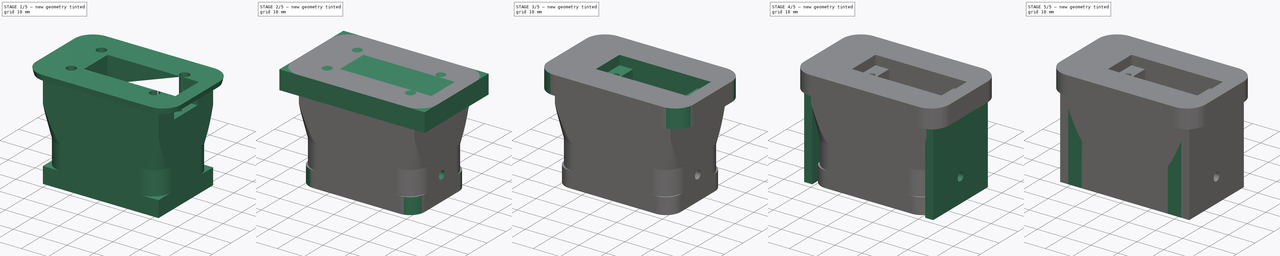
[diagram: build sequence overview — one tinted view per stage of 5, left to right]
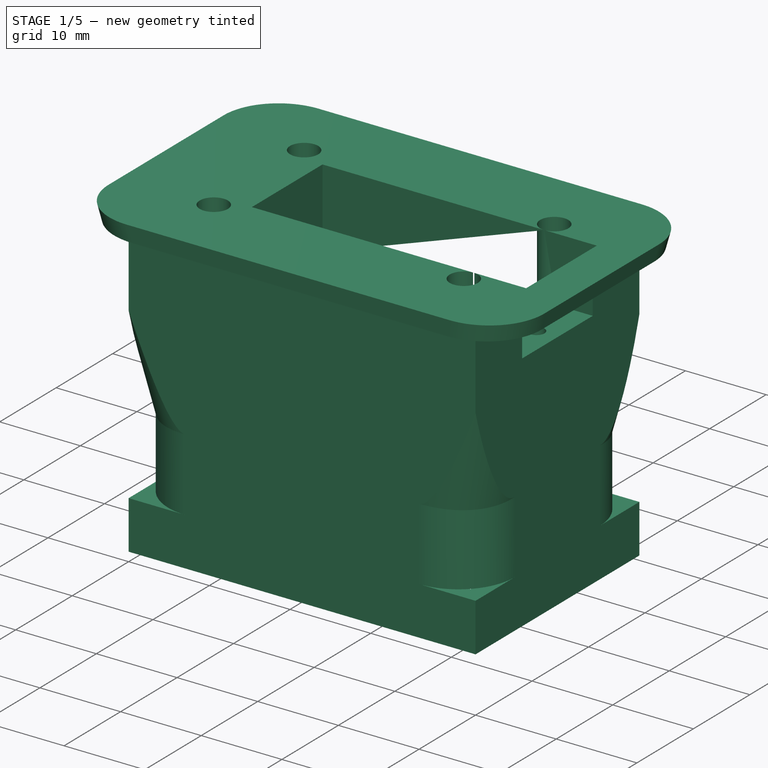
[diagram: stage 1 of 5 — iso view after this stage's code; geometry added in this stage tinted green]
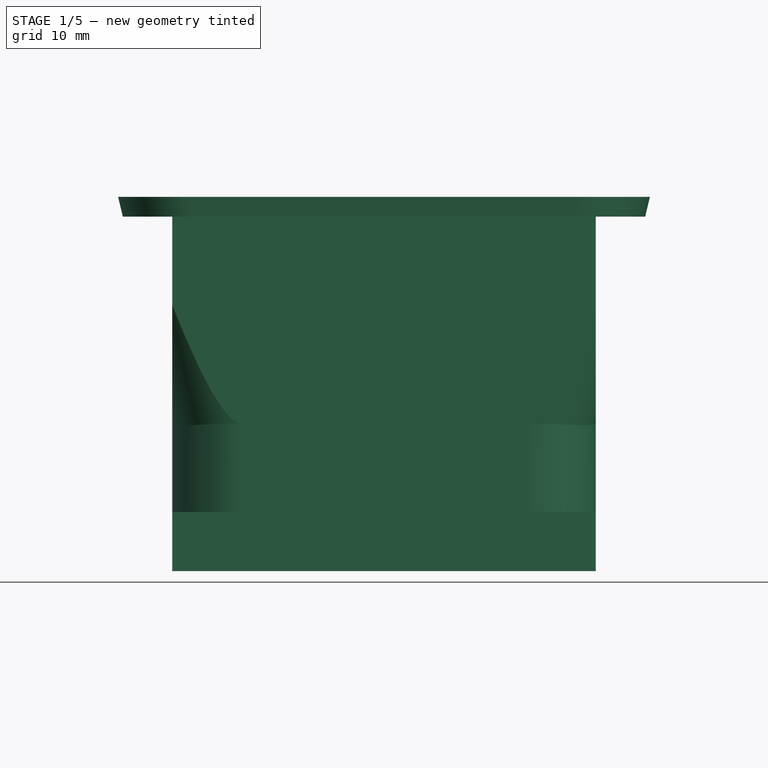
[diagram: stage 1 of 5 — front view after this stage's code; geometry added in this stage tinted green]
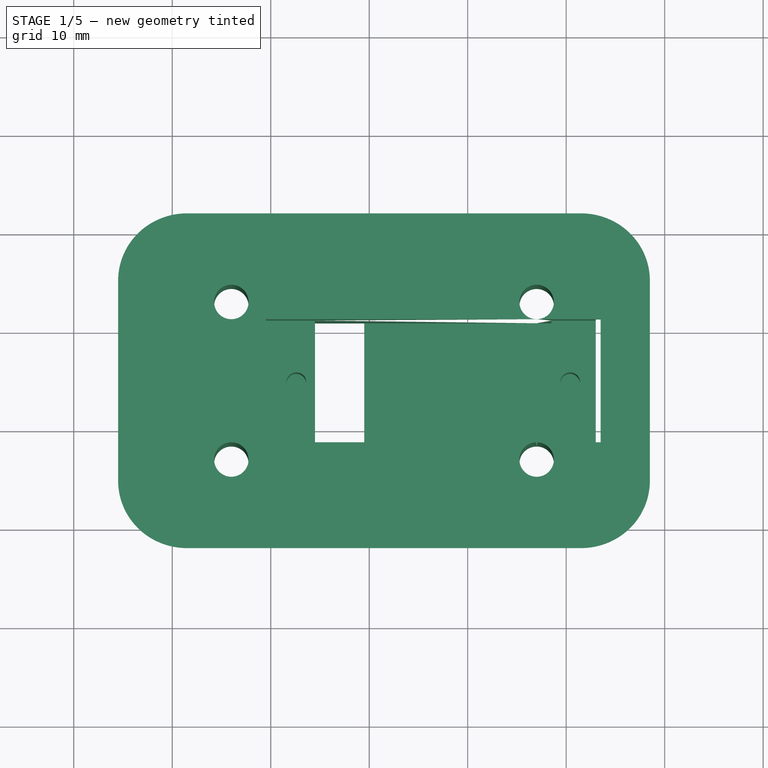
[diagram: stage 1 of 5 — top view after this stage's code; geometry added in this stage tinted green]
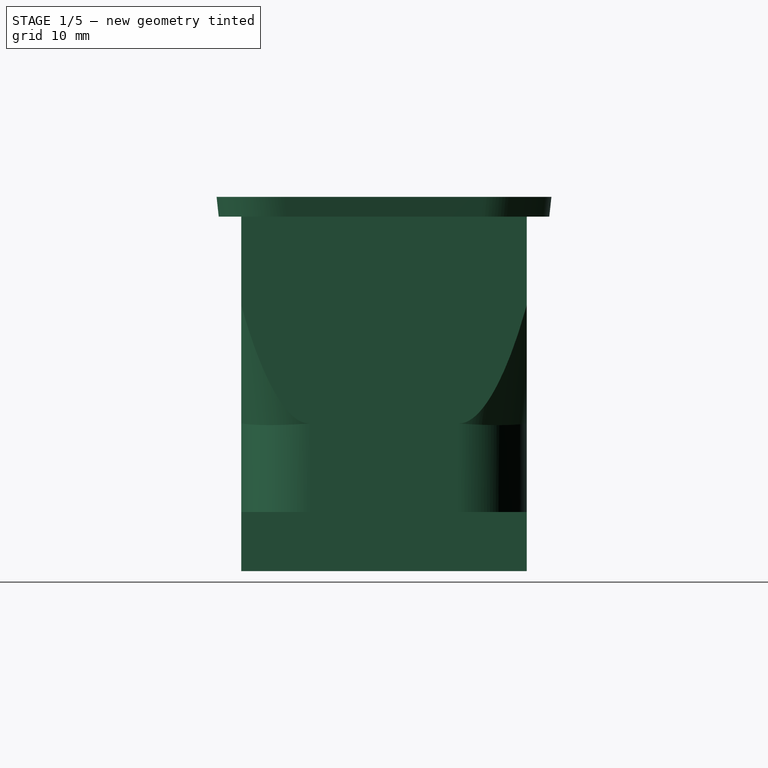
[diagram: stage 1 of 5 — right view after this stage's code; geometry added in this stage tinted green]
FCSTD DOCUMENT  (FreeCAD 0.21R33668 +26 (Git))
Label: Gripper_3_0
License: All rights reserved
LicenseURL: https://en.wikipedia.org/wiki/All_rights_reserved
objects: Sketcher::SketchObject×15, PartDesign::Pocket×8, PartDesign::Pad×5, PartDesign::Fillet×2, Part::Feature×1, PartDesign::FeatureBase×1, PartDesign::Body×1
note: 48 computed .brp shape members not serialized (recipe doc carries the construction recipe); baked Part::Feature solids carry a one-line shape summary decoded from their .brp

FEATURE [Part::Feature] Part__Feature  label="gripper_base_plate v1"
  shape: bbox 54.07 x 34.22 x 33.02 mm, 50 faces (baked)
FEATURE [PartDesign::FeatureBase] BaseFeature
  BaseFeature = -> Part__Feature
FEATURE [Sketcher::SketchObject] Sketch
  ExternalGeometry = -> [BaseFeature]
  FullyConstrained = false
  MapMode = 5
  Placement = pos=(0,0,0) rot=(1,0,0;3.14159rad)
  Support = -> [BaseFeature]
  sketch-geometry (8):
    g0: LineSegment StartX=0 StartY=0 StartZ=0 EndX=43 EndY=0 EndZ=0
    g1: LineSegment StartX=43 StartY=0 StartZ=0 EndX=43 EndY=-29 EndZ=0
    g2: LineSegment StartX=43 StartY=-29 StartZ=0 EndX=0 EndY=-29 EndZ=0
    g3: LineSegment StartX=0 StartY=-29 StartZ=0 EndX=0 EndY=0 EndZ=0
    g4: LineSegment StartX=-11.8752 StartY=7.13201 StartZ=0 EndX=58.9013 EndY=7.13201 EndZ=0
    g5: LineSegment StartX=58.9013 StartY=7.13201 StartZ=0 EndX=58.9013 EndY=-39.2659 EndZ=0
    g6: LineSegment StartX=58.9013 StartY=-39.2659 StartZ=0 EndX=-11.8752 EndY=-39.2659 EndZ=0
    g7: LineSegment StartX=-11.8752 StartY=-39.2659 StartZ=0 EndX=-11.8752 EndY=7.13201 EndZ=0
  constraints (19):
    c: Coincident(g0,g1)
    c: Coincident(g1,g2)
    c: Coincident(g2,g3)
    c: Coincident(g3,g0)
    c: Horizontal(g0)
    c: Horizontal(g2)
    c: Vertical(g1)
    c: Vertical(g3)
    c: Coincident(g0,g-1)
    c: Vertical(g1,g-3)
    c: Horizontal(g1,g-4)
    c: Coincident(g4,g5)
    c: Coincident(g5,g6)
    c: Coincident(g6,g7)
    c: Coincident(g7,g4)
    c: Horizontal(g4)
    c: Horizontal(g6)
    c: Vertical(g5)
    c: Vertical(g7)
FEATURE [PartDesign::Pocket] Pocket
  BaseFeature = -> BaseFeature
  Direction = (0,0,1)
  Length = 30
  Length2 = 5
  Profile = -> Sketch
  ReferenceAxis = -> Sketch [N_Axis]
  Type = 0
FEATURE [Sketcher::SketchObject] Sketch002
  ExternalGeometry = -> [Pocket]
  FullyConstrained = false
  MapMode = 5
  Placement = pos=(0,0,0) rot=(1,0,0;3.14159rad)
  Support = -> [Pocket]
  sketch-geometry (8):
    g0: LineSegment StartX=0 StartY=0 StartZ=0 EndX=43 EndY=0 EndZ=0
    g1: LineSegment StartX=43 StartY=0 StartZ=0 EndX=43 EndY=-29 EndZ=0
    g2: LineSegment StartX=43 StartY=-29 StartZ=0 EndX=0 EndY=-29 EndZ=0
    g3: LineSegment StartX=0 StartY=-29 StartZ=0 EndX=0 EndY=0 EndZ=0
    g4: LineSegment StartX=2 StartY=-2 StartZ=0 EndX=41 EndY=-2 EndZ=0
    g5: LineSegment StartX=41 StartY=-2 StartZ=0 EndX=41 EndY=-27 EndZ=0
    g6: LineSegment StartX=41 StartY=-27 StartZ=0 EndX=2 EndY=-27 EndZ=0
    g7: LineSegment StartX=2 StartY=-27 StartZ=0 EndX=2 EndY=-2 EndZ=0
  constraints (22):
    c: Coincident(g0,g1)
    c: Coincident(g1,g2)
    c: Coincident(g2,g3)
    c: Coincident(g3,g0)
    c: Horizontal(g0)
    c: Horizontal(g2)
    c: Vertical(g1)
    c: Vertical(g3)
    c: Coincident(g0,g-1)
    c: Vertical(g1,g-4)
    c: Coincident(g4,g5)
    c: Coincident(g5,g6)
    c: Coincident(g6,g7)
    c: Coincident(g7,g4)
    c: Horizontal(g4)
    c: Horizontal(g6)
    c: Vertical(g5)
    c: Vertical(g7)
    c: Vertical(g4,g-9)
    c: Vertical(g-8,g4)
    c: Horizontal(g4,g-5)
    c: Horizontal(g5,g-7)
FEATURE [PartDesign::Pad] Pad
  BaseFeature = -> Pocket
  Direction = (0,0,-1)
  Length = 6
  Length2 = 10
  Profile = -> Sketch002
  ReferenceAxis = -> Sketch002 [N_Axis]
  Type = 0
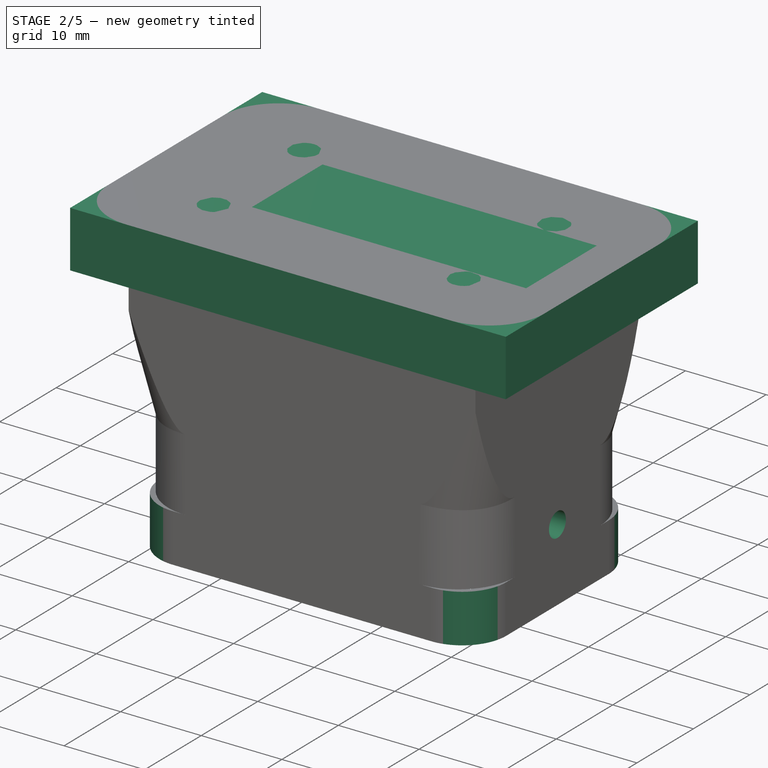
[diagram: stage 2 of 5 — iso view after this stage's code; geometry added in this stage tinted green]
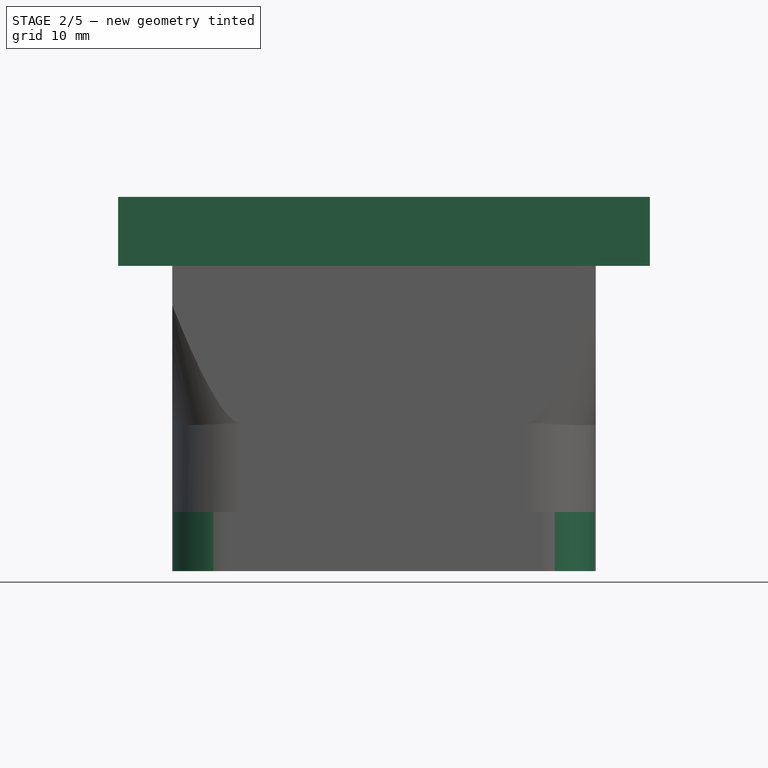
[diagram: stage 2 of 5 — front view after this stage's code; geometry added in this stage tinted green]
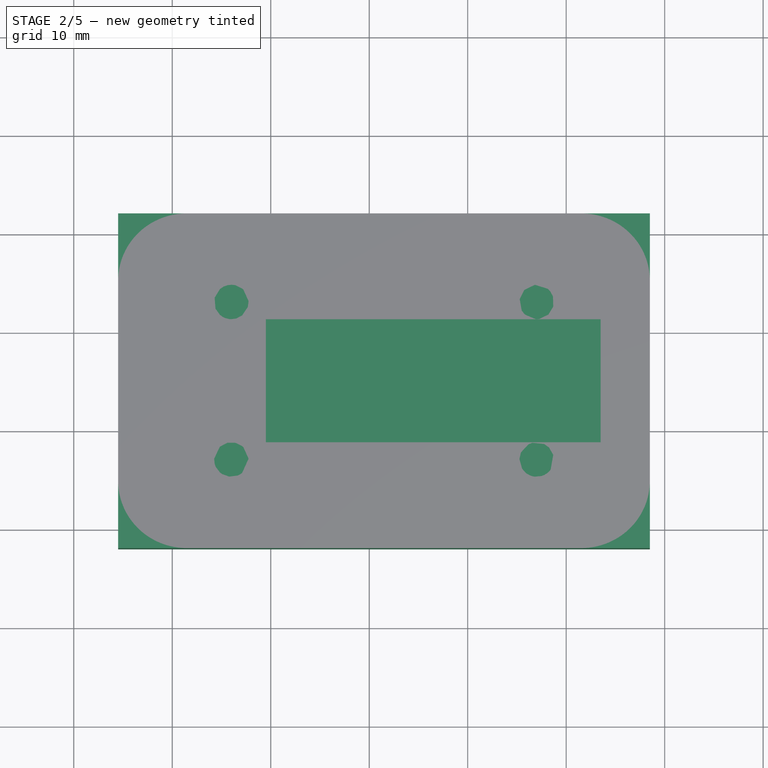
[diagram: stage 2 of 5 — top view after this stage's code; geometry added in this stage tinted green]
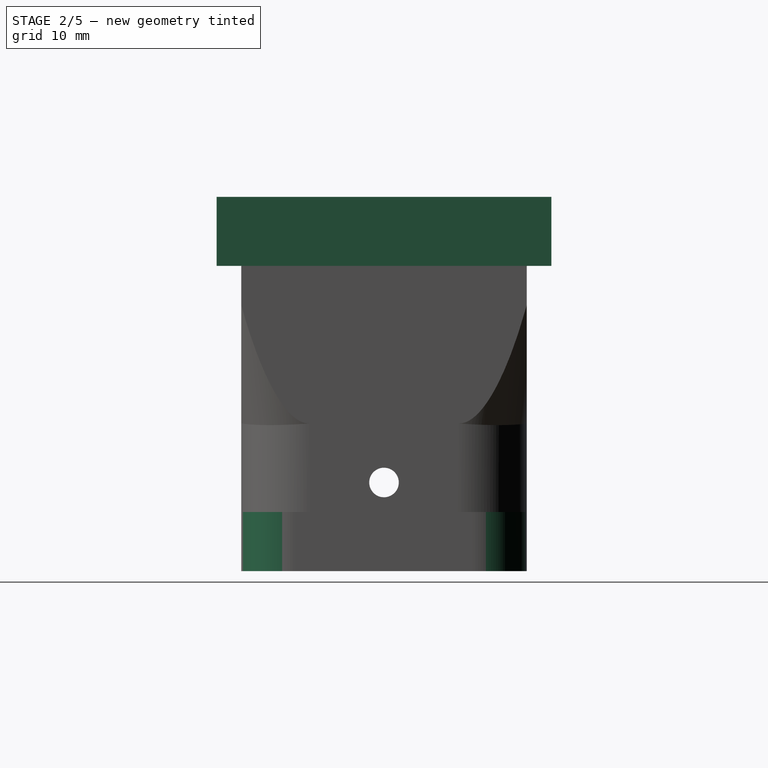
[diagram: stage 2 of 5 — right view after this stage's code; geometry added in this stage tinted green]
FEATURE [PartDesign::Fillet] Fillet
  Base = -> Pad [Edge33,Edge39,Edge28,Edge38,Edge42,Edge27,Edge72,Edge97]
  BaseFeature = -> Pad
  Radius = 5.49
  SupportTransform = false
  UseAllEdges = false
FEATURE [Sketcher::SketchObject] Sketch003
  ExternalGeometry = -> [Fillet]
  FullyConstrained = true
  MapMode = 5
  Placement = pos=(41,0,0) rot=(0.57735,-0.57735,-0.57735;2.0944rad)
  Support = -> [Fillet]
  sketch-geometry (1):
    g0: Circle CenterX=-14.5 CenterY=3 CenterZ=0 NormalX=0 NormalY=0 NormalZ=1 AngleXU=0 Radius=1.5
  constraints (4):
    c: Diameter(g0) = 3
    c: DistanceY(g0,g-3) = 4
    c: DistanceX(g-3,g-3) = 14
    c: DistanceX(g-3,g0) = 7
FEATURE [PartDesign::Pocket] Pocket001
  BaseFeature = -> Fillet
  Direction = (1,0,0)
  Length = 400
  Length2 = 100
  Profile = -> Sketch003
  ReferenceAxis = -> Sketch003 [N_Axis]
  Type = 4
FEATURE [Sketcher::SketchObject] Sketch004
  ExternalGeometry = -> [Pocket001]
  FullyConstrained = true
  MapMode = 5
  Placement = pos=(0,0,32) rot=(0,0,1;0rad)
  Support = -> [Pocket001]
  sketch-geometry (4):
    g0: LineSegment StartX=-5.5 StartY=31.5 StartZ=0 EndX=48.5 EndY=31.5 EndZ=0
    g1: LineSegment StartX=48.5 StartY=31.5 StartZ=0 EndX=48.5 EndY=-2.5 EndZ=0
    g2: LineSegment StartX=48.5 StartY=-2.5 StartZ=0 EndX=-5.5 EndY=-2.5 EndZ=0
    g3: LineSegment StartX=-5.5 StartY=-2.5 StartZ=0 EndX=-5.5 EndY=31.5 EndZ=0
  constraints (12):
    c: Coincident(g0,g1)
    c: Coincident(g1,g2)
    c: Coincident(g2,g3)
    c: Coincident(g3,g0)
    c: Horizontal(g0)
    c: Horizontal(g2)
    c: Vertical(g1)
    c: Vertical(g3)
    c: Vertical(g0,g-6)
    c: Vertical(g0,g-5)
    c: Horizontal(g0,g-3)
    c: Horizontal(g2,g-4)
FEATURE [PartDesign::Pad] Pad001
  BaseFeature = -> Pocket001
  Direction = (0,0,1)
  Length = 7
  Length2 = 10
  Profile = -> Sketch004
  ReferenceAxis = -> Sketch004 [N_Axis]
  Reversed = true
  Type = 0
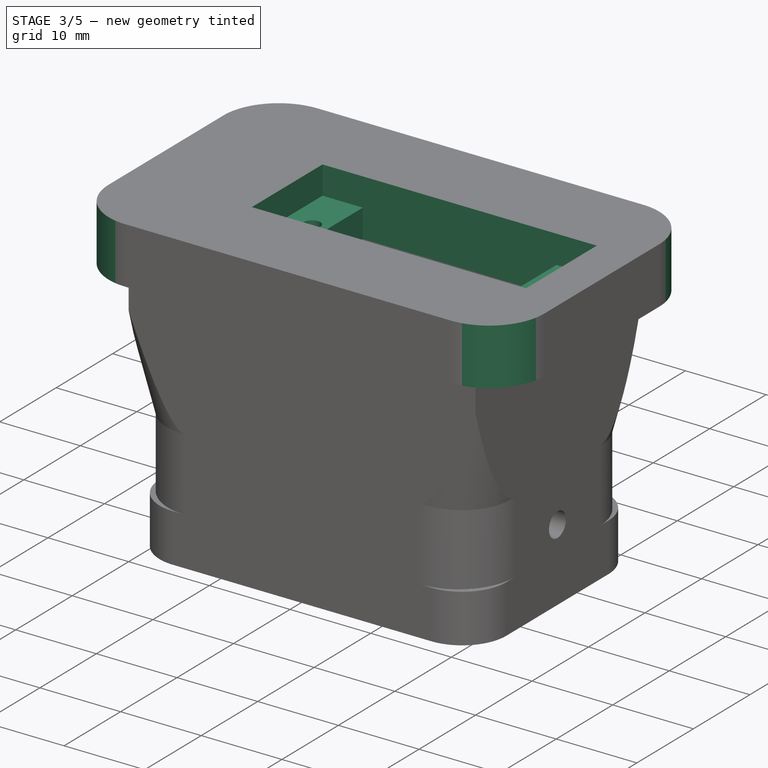
[diagram: stage 3 of 5 — iso view after this stage's code; geometry added in this stage tinted green]
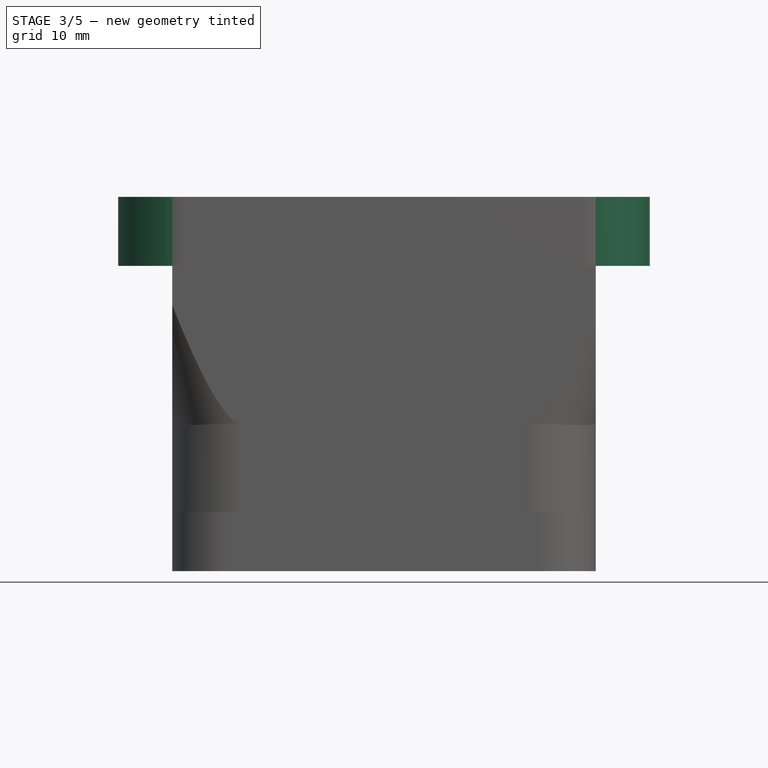
[diagram: stage 3 of 5 — front view after this stage's code; geometry added in this stage tinted green]
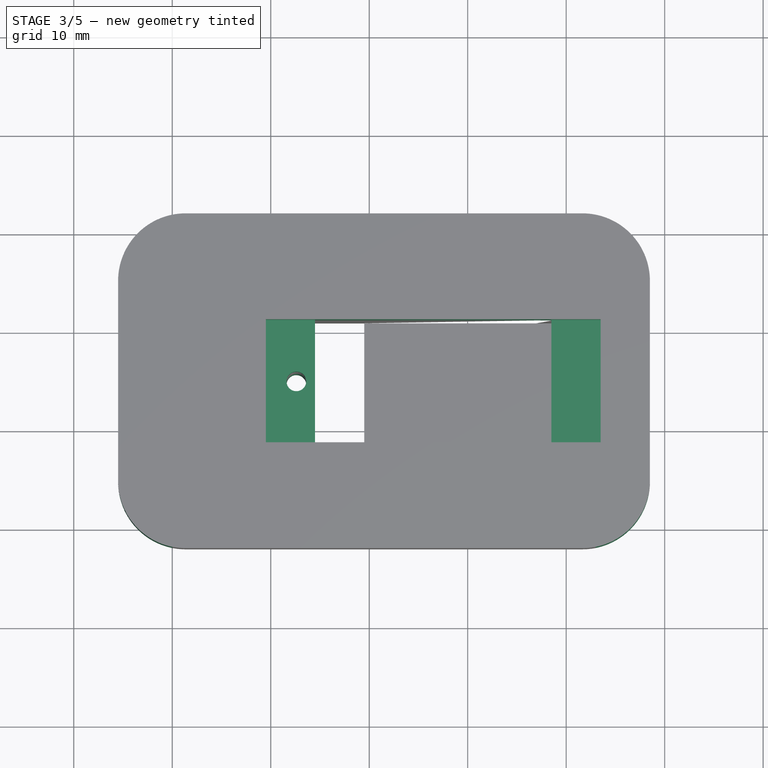
[diagram: stage 3 of 5 — top view after this stage's code; geometry added in this stage tinted green]
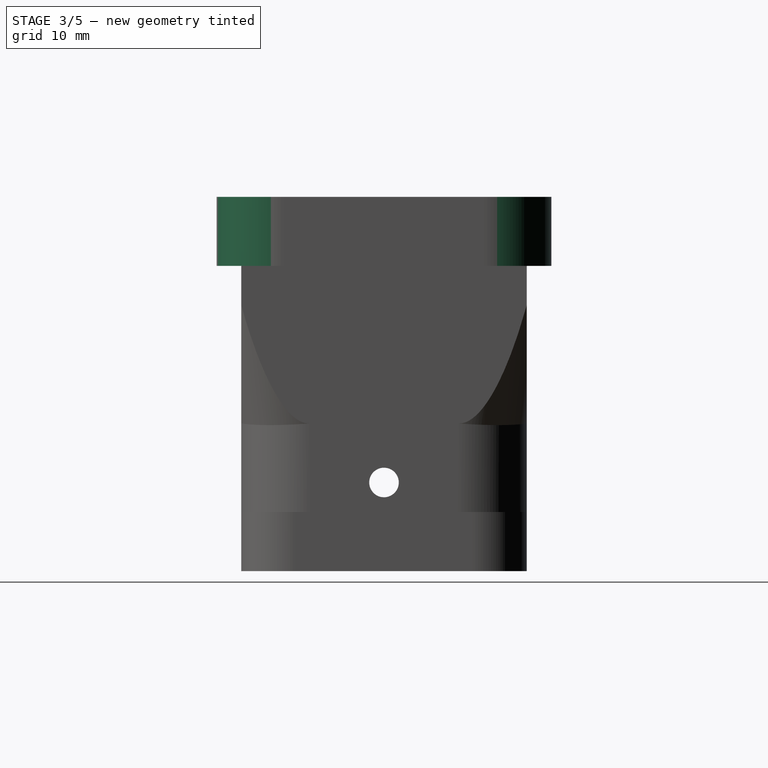
[diagram: stage 3 of 5 — right view after this stage's code; geometry added in this stage tinted green]
FEATURE [PartDesign::Fillet] Fillet001
  Base = -> Pad001 [Edge188,Edge196,Edge192,Edge187]
  BaseFeature = -> Pad001
  Radius = 6.85
  SupportTransform = false
  UseAllEdges = false
FEATURE [Sketcher::SketchObject] Sketch006
  ExternalGeometry = -> [Fillet001]
  FullyConstrained = true
  MapMode = 5
  Placement = pos=(0,0,25) rot=(1,0,0;3.14159rad)
  Support = -> [Fillet001]
  sketch-geometry (4):
    g0: LineSegment StartX=14.5 StartY=-8.25 StartZ=0 EndX=38.5 EndY=-8.25 EndZ=0
    g1: LineSegment StartX=38.5 StartY=-8.25 StartZ=0 EndX=38.5 EndY=-20.75 EndZ=0
    g2: LineSegment StartX=38.5 StartY=-20.75 StartZ=0 EndX=14.5 EndY=-20.75 EndZ=0
    g3: LineSegment StartX=14.5 StartY=-20.75 StartZ=0 EndX=14.5 EndY=-8.25 EndZ=0
  constraints (10):
    c: Coincident(g0,g1)
    c: Coincident(g1,g2)
    c: Coincident(g2,g3)
    c: Coincident(g3,g0)
    c: Horizontal(g0)
    c: Horizontal(g2)
    c: Vertical(g1)
    c: Vertical(g3)
    c: Coincident(g0,g-4)
    c: Coincident(g1,g-3)
FEATURE [PartDesign::Pocket] Pocket002
  BaseFeature = -> Fillet001
  Direction = (0,0,1)
  Length = 5
  Length2 = 5
  Profile = -> Sketch006
  ReferenceAxis = -> Sketch006 [N_Axis]
  Type = 1
FEATURE [Sketcher::SketchObject] Sketch007
  ExternalGeometry = -> [Pocket002]
  FullyConstrained = true
  MapMode = 5
  Placement = pos=(0,0,32) rot=(0,0,1;0rad)
  Support = -> [Pocket002]
  sketch-geometry (4):
    g0: LineSegment StartX=9.5 StartY=20.75 StartZ=0 EndX=43.5 EndY=20.75 EndZ=0
    g1: LineSegment StartX=43.5 StartY=20.75 StartZ=0 EndX=43.5 EndY=8.25 EndZ=0
    g2: LineSegment StartX=43.5 StartY=8.25 StartZ=0 EndX=9.5 EndY=8.25 EndZ=0
    g3: LineSegment StartX=9.5 StartY=8.25 StartZ=0 EndX=9.5 EndY=20.75 EndZ=0
  constraints (10):
    c: Coincident(g0,g1)
    c: Coincident(g1,g2)
    c: Coincident(g2,g3)
    c: Coincident(g3,g0)
    c: Horizontal(g0)
    c: Horizontal(g2)
    c: Vertical(g1)
    c: Vertical(g3)
    c: Coincident(g0,g-4)
    c: Coincident(g1,g-3)
FEATURE [PartDesign::Pocket] Pocket003
  BaseFeature = -> Pocket002
  Direction = (0,0,-1)
  Length = 3.5
  Length2 = 5
  Profile = -> Sketch007
  ReferenceAxis = -> Sketch007 [N_Axis]
  Type = 0
FEATURE [Sketcher::SketchObject] Sketch008
  ExternalGeometry = -> [Pocket003]
  FullyConstrained = true
  MapMode = 5
  Placement = pos=(0,0,28.5) rot=(0,0,1;0rad)
  Support = -> [Pocket003]
  sketch-geometry (1):
    g0: Circle CenterX=12.6 CenterY=14.5 CenterZ=0 NormalX=0 NormalY=0 NormalZ=1 AngleXU=0 Radius=1
  constraints (2):
    c: Coincident(g0,g-4)
    c: Tangent(g0,g-4)
FEATURE [PartDesign::Pocket] Pocket004
  BaseFeature = -> Pocket003
  Direction = (0,0,-1)
  Length = 5
  Length2 = 5
  Profile = -> Sketch008
  ReferenceAxis = -> Sketch008 [N_Axis]
  Type = 1
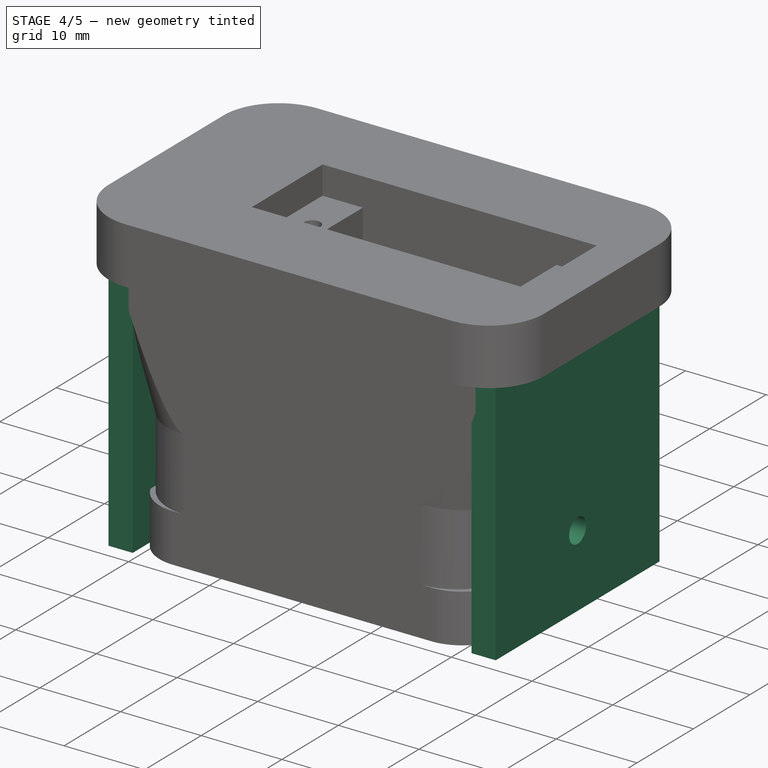
[diagram: stage 4 of 5 — iso view after this stage's code; geometry added in this stage tinted green]
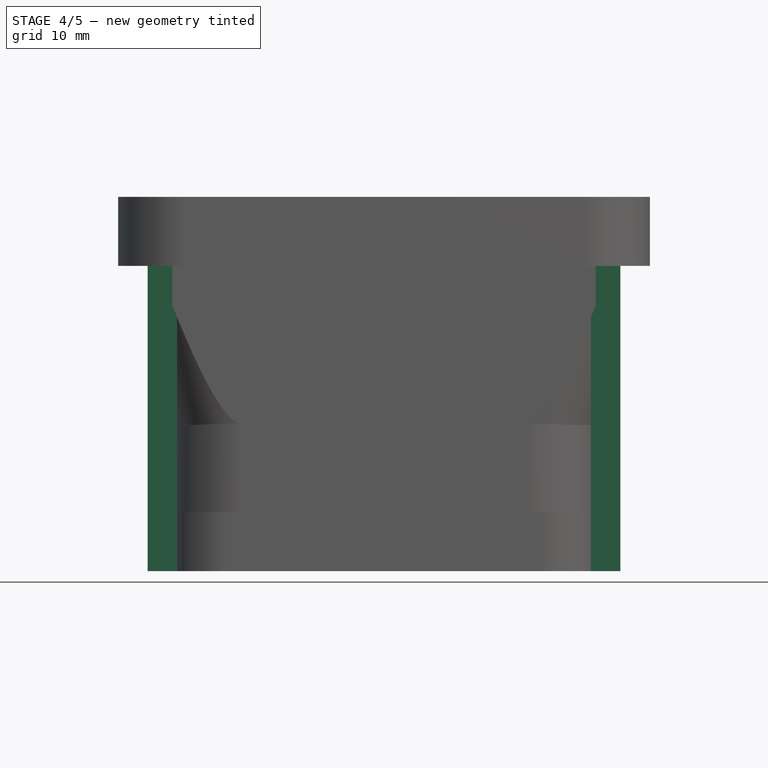
[diagram: stage 4 of 5 — front view after this stage's code; geometry added in this stage tinted green]
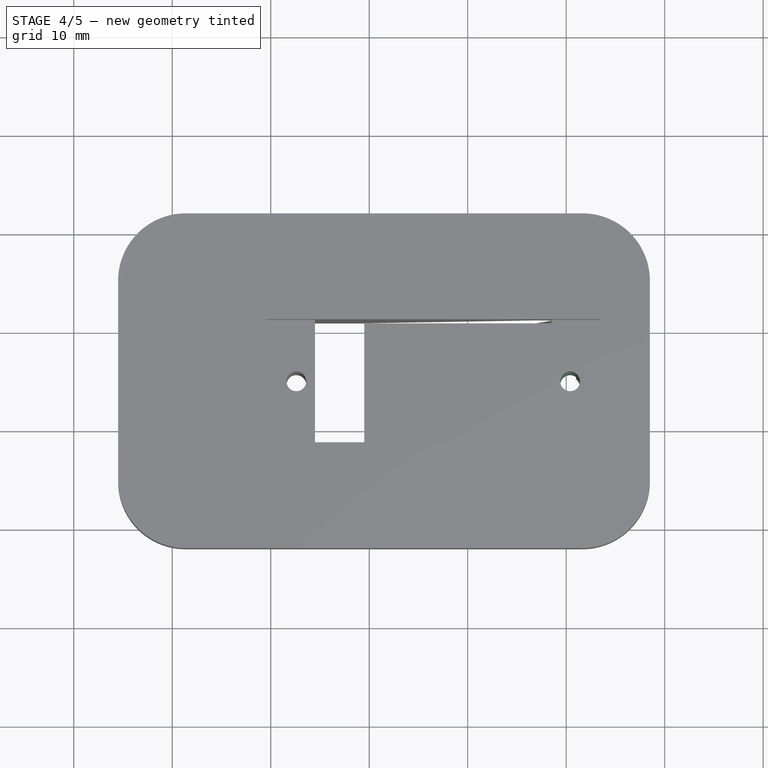
[diagram: stage 4 of 5 — top view after this stage's code; geometry added in this stage tinted green]
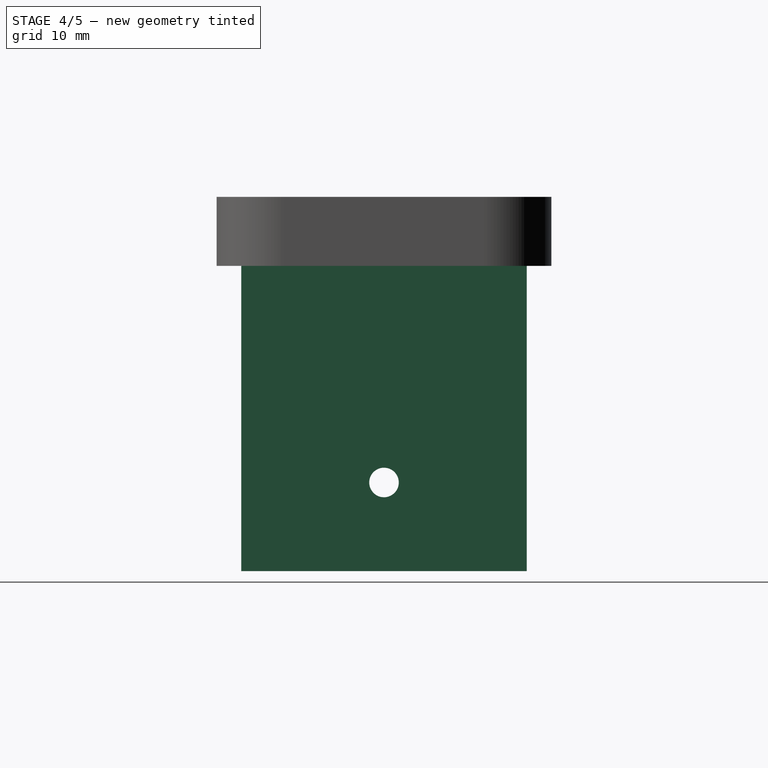
[diagram: stage 4 of 5 — right view after this stage's code; geometry added in this stage tinted green]
FEATURE [Sketcher::SketchObject] Sketch009
  ExternalGeometry = -> [Pocket004]
  FullyConstrained = true
  MapMode = 5
  Placement = pos=(0,0,28.5) rot=(0,0,1;0rad)
  Support = -> [Pocket004]
  sketch-geometry (1):
    g0: Circle CenterX=40.4 CenterY=14.5 CenterZ=0 NormalX=0 NormalY=0 NormalZ=1 AngleXU=0 Radius=1
  constraints (2):
    c: Coincident(g0,g-3)
    c: Tangent(g0,g-3)
FEATURE [PartDesign::Pocket] Pocket005
  BaseFeature = -> Pocket004
  Direction = (0,0,-1)
  Length = 5
  Length2 = 5
  Profile = -> Sketch009
  ReferenceAxis = -> Sketch009 [N_Axis]
  Type = 1
FEATURE [Sketcher::SketchObject] Sketch010
  ExternalGeometry = -> [Pocket005]
  FullyConstrained = true
  MapMode = 5
  Placement = pos=(0,0,0) rot=(1,0,0;1.5708rad)
  Support = -> [Pocket005]
  sketch-geometry (8):
    g0: LineSegment StartX=0.5 StartY=25 StartZ=0 EndX=-2.5 EndY=25 EndZ=0
    g1: LineSegment StartX=-2.5 StartY=25 StartZ=0 EndX=-2.5 EndY=-6 EndZ=0
    g2: LineSegment StartX=-2.5 StartY=-6 StartZ=0 EndX=0.5 EndY=-6 EndZ=0
    g3: LineSegment StartX=0.5 StartY=-6 StartZ=0 EndX=0.5 EndY=25 EndZ=0
    g4: LineSegment StartX=45.5 StartY=25 StartZ=0 EndX=42.5 EndY=25 EndZ=0
    g5: LineSegment StartX=42.5 StartY=25 StartZ=0 EndX=42.5 EndY=-6 EndZ=0
    g6: LineSegment StartX=42.5 StartY=-6 StartZ=0 EndX=45.5 EndY=-6 EndZ=0
    g7: LineSegment StartX=45.5 StartY=-6 StartZ=0 EndX=45.5 EndY=25 EndZ=0
  constraints (24):
    c: Coincident(g0,g1)
    c: Coincident(g1,g2)
    c: Coincident(g2,g3)
    c: Coincident(g3,g0)
    c: Horizontal(g0)
    c: Horizontal(g2)
    c: Vertical(g1)
    c: Vertical(g3)
    c: Coincident(g4,g5)
    c: Coincident(g5,g6)
    c: Coincident(g6,g7)
    c: Coincident(g7,g4)
    c: Horizontal(g4)
    c: Horizontal(g6)
    c: Vertical(g5)
    c: Vertical(g7)
    c: Horizontal(g4,g0)
    c: DistanceX(g-1,g2) = 0.5
    c: DistanceX(g5,g-3) = 0.5
    c: Horizontal(g1,g6)
    c: Horizontal(g1,g-4)
    c: DistanceX(g2,g2) = 3
    c: DistanceX(g6,g6) = 3
    c: DistanceY(g0,g-5) = 7
FEATURE [PartDesign::Pad] Pad002
  BaseFeature = -> Pocket005
  Direction = (0,-1,2e-16)
  Length = 32
  Length2 = 10
  Profile = -> Sketch010
  ReferenceAxis = -> Sketch010 [N_Axis]
  Reversed = true
  Type = 3
  UpToFace = -> Pocket005 [Face16]
FEATURE [Sketcher::SketchObject] Sketch011
  ExternalGeometry = -> [Pad002]
  FullyConstrained = true
  MapMode = 5
  Placement = pos=(42.5,0,0) rot=(0.57735,-0.57735,-0.57735;2.0944rad)
  Support = -> [Pad002]
  sketch-geometry (1):
    g0: Circle CenterX=-14.5 CenterY=3 CenterZ=0 NormalX=0 NormalY=0 NormalZ=1 AngleXU=0 Radius=1.5
  constraints (2):
    c: Coincident(g0,g-3)
    c: Tangent(g0,g-3)
FEATURE [PartDesign::Pocket] Pocket006
  BaseFeature = -> Pad002
  Direction = (1,0,0)
  Length = 100
  Length2 = 100
  Profile = -> Sketch011
  ReferenceAxis = -> Sketch011 [N_Axis]
  Type = 4
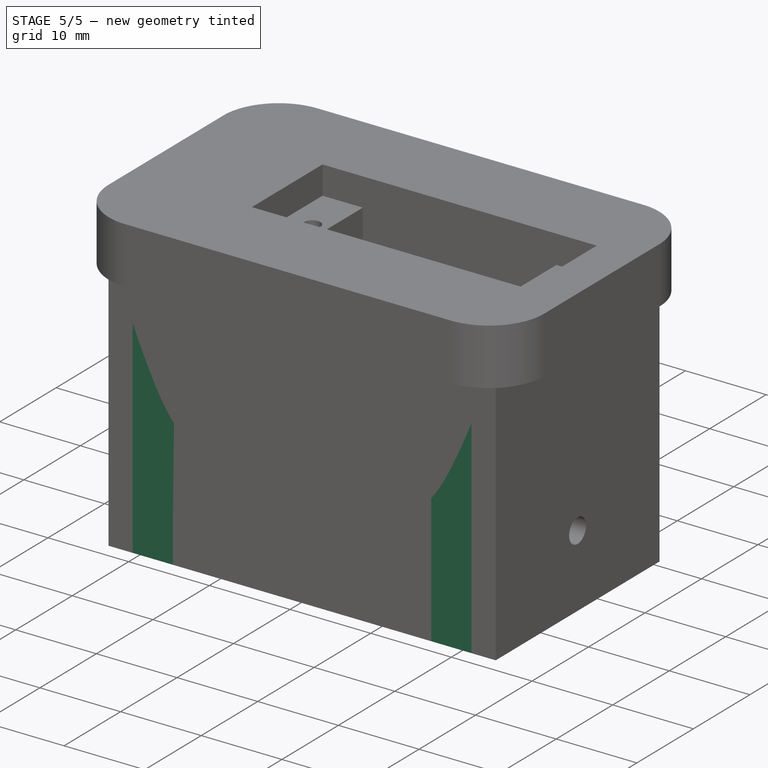
[diagram: stage 5 of 5 — iso view after this stage's code; geometry added in this stage tinted green]
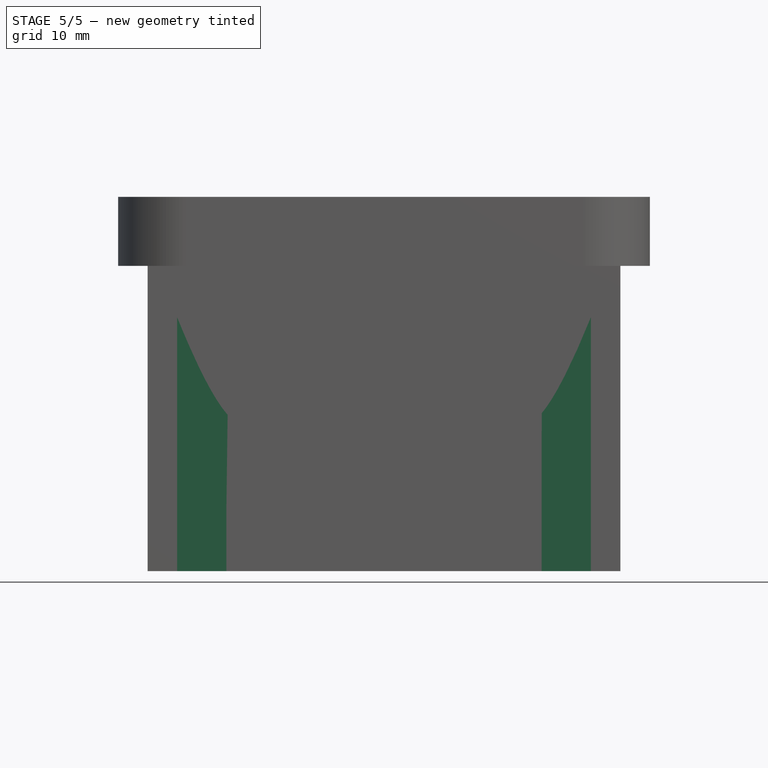
[diagram: stage 5 of 5 — front view after this stage's code; geometry added in this stage tinted green]
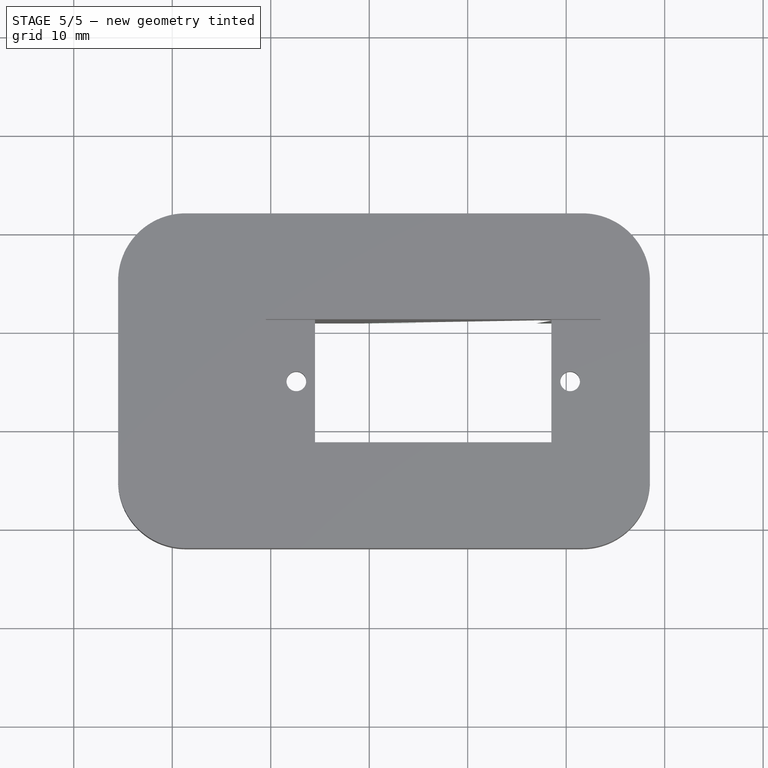
[diagram: stage 5 of 5 — top view after this stage's code; geometry added in this stage tinted green]
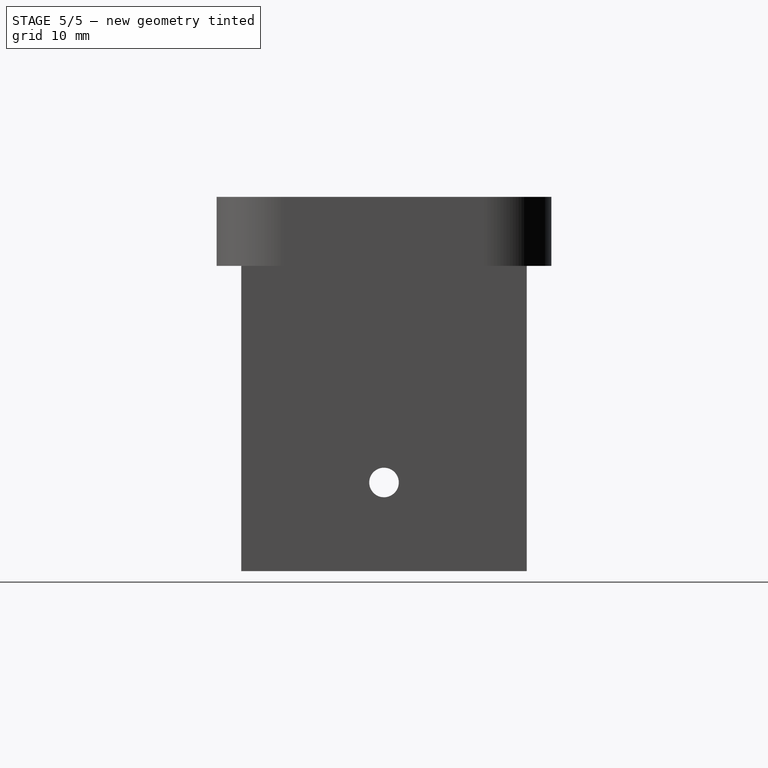
[diagram: stage 5 of 5 — right view after this stage's code; geometry added in this stage tinted green]
FEATURE [Sketcher::SketchObject] Sketch012
  ExternalGeometry = -> [Pocket006]
  FullyConstrained = true
  MapMode = 5
  Placement = pos=(0,0,7) rot=(1,0,0;3.14159rad)
  Support = -> [Pocket006]
  sketch-geometry (4):
    g0: LineSegment StartX=9.5 StartY=-8.25 StartZ=0 EndX=43 EndY=-8.25 EndZ=0
    g1: LineSegment StartX=43 StartY=-8.25 StartZ=0 EndX=43 EndY=-20.75 EndZ=0
    g2: LineSegment StartX=43 StartY=-20.75 StartZ=0 EndX=9.5 EndY=-20.75 EndZ=0
    g3: LineSegment StartX=9.5 StartY=-20.75 StartZ=0 EndX=9.5 EndY=-8.25 EndZ=0
  constraints (12):
    c: Coincident(g0,g1)
    c: Coincident(g2,g3)
    c: Coincident(g3,g0)
    c: Horizontal(g0)
    c: Horizontal(g2)
    c: Vertical(g1)
    c: Vertical(g3)
    c: Coincident(g0,g-5)
    c: Horizontal(g2,g-4)
    c: Vertical(g2,g1)
    c: Horizontal(g1,g2)
    c: Vertical(g1,g-6)
FEATURE [PartDesign::Pocket] Pocket007
  BaseFeature = -> Pocket006
  Direction = (0,0,1)
  Length = 18
  Length2 = 15
  Profile = -> Sketch012
  ReferenceAxis = -> Sketch012 [N_Axis]
  Type = 4
FEATURE [Sketcher::SketchObject] Sketch013
  ExternalGeometry = -> [Pocket007]
  FullyConstrained = true
  MapMode = 5
  Placement = pos=(0,29,0) rot=(0,0.707107,0.707107;3.14159rad)
  Support = -> [Pocket007]
  sketch-geometry (4):
    g0: LineSegment StartX=2.5 StartY=25 StartZ=0 EndX=-45.5 EndY=25 EndZ=0
    g1: LineSegment StartX=-45.5 StartY=25 StartZ=0 EndX=-45.5 EndY=-6 EndZ=0
    g2: LineSegment StartX=-45.5 StartY=-6 StartZ=0 EndX=2.5 EndY=-6 EndZ=0
    g3: LineSegment StartX=2.5 StartY=-6 StartZ=0 EndX=2.5 EndY=25 EndZ=0
  constraints (10):
    c: Coincident(g0,g1)
    c: Coincident(g1,g2)
    c: Coincident(g2,g3)
    c: Coincident(g3,g0)
    c: Horizontal(g0)
    c: Horizontal(g2)
    c: Vertical(g1)
    c: Vertical(g3)
    c: Coincident(g0,g-5)
    c: Coincident(g1,g-6)
FEATURE [PartDesign::Pad] Pad003
  BaseFeature = -> Pocket007
  Direction = (0,1,-2e-16)
  Length = 8
  Length2 = 10
  Profile = -> Sketch013
  ReferenceAxis = -> Sketch013 [N_Axis]
  Refine = true
  Reversed = true
  Type = 3
  UpToFace = -> Pocket007 [Face84]
FEATURE [Sketcher::SketchObject] Sketch014
  ExternalGeometry = -> [Pad003]
  FullyConstrained = true
  MapMode = 5
  Placement = pos=(0,0,0) rot=(1,0,0;1.5708rad)
  Support = -> [Pad003]
  sketch-geometry (4):
    g0: LineSegment StartX=45.5 StartY=-6 StartZ=0 EndX=-2.5 EndY=-6 EndZ=0
    g1: LineSegment StartX=-2.5 StartY=-6 StartZ=0 EndX=-2.5 EndY=25 EndZ=0
    g2: LineSegment StartX=-2.5 StartY=25 StartZ=0 EndX=45.5 EndY=25 EndZ=0
    g3: LineSegment StartX=45.5 StartY=25 StartZ=0 EndX=45.5 EndY=-6 EndZ=0
  constraints (10):
    c: Coincident(g0,g1)
    c: Coincident(g1,g2)
    c: Coincident(g2,g3)
    c: Coincident(g3,g0)
    c: Horizontal(g0)
    c: Horizontal(g2)
    c: Vertical(g1)
    c: Vertical(g3)
    c: Coincident(g0,g-4)
    c: Coincident(g1,g-3)
FEATURE [PartDesign::Pad] Pad004
  BaseFeature = -> Pad003
  Direction = (0,-1,2e-16)
  Length = 10
  Length2 = 10
  Profile = -> Sketch014
  ReferenceAxis = -> Sketch014 [N_Axis]
  Reversed = true
  Type = 3
  UpToFace = -> Pad003 [Face105]
FEATURE [Sketcher::SketchObject] Sketch015
  ExternalGeometry = -> [Pad004]
  FullyConstrained = true
  MapMode = 5
  Placement = pos=(0,0,28.5) rot=(0,0,1;0rad)
  Support = -> [Pad004]
FEATURE [Sketcher::SketchObject] Sketch016
  ExternalGeometry = -> [Pad004]
  FullyConstrained = true
  MapMode = 5
  Placement = pos=(0,0,32) rot=(0,0,1;0rad)
  Support = -> [Pad004]
  constraints (2):
    c: DistanceX(g-5,g-3) = 3.5
    c: DistanceX(g-6,g-4) = 6.5
FEATURE [PartDesign::Body] Body
  BaseFeature = -> Part__Feature
  Group = -> [BaseFeature,Sketch,Pocket,Sketch002,Pad,Fillet,Sketch003,Pocket001,Sketch004,Pad001,Fillet001,Sketch006,Pocket002,Sketch007,Pocket003,Sketch008,Pocket004,Sketch009,Pocket005,Sketch010,Pad002,Sketch011,Pocket006,Sketch012,Pocket007,Sketch013,Pad003,Sketch014,Pad004,Sketch015,Sketch016]
  Origin = -> Origin
  Tip = -> Pad004
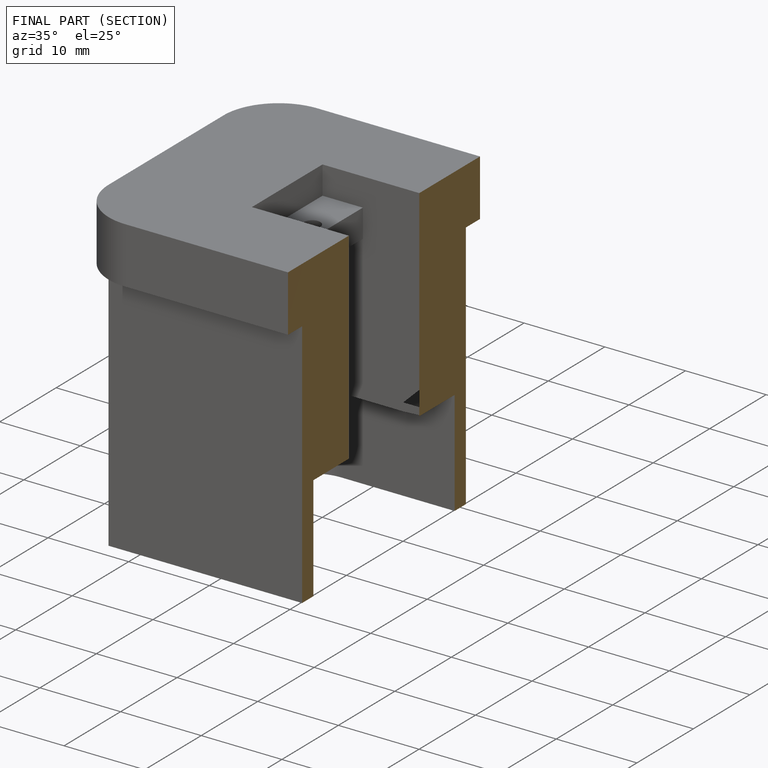
[diagram: finished part — half-section view (interior)]
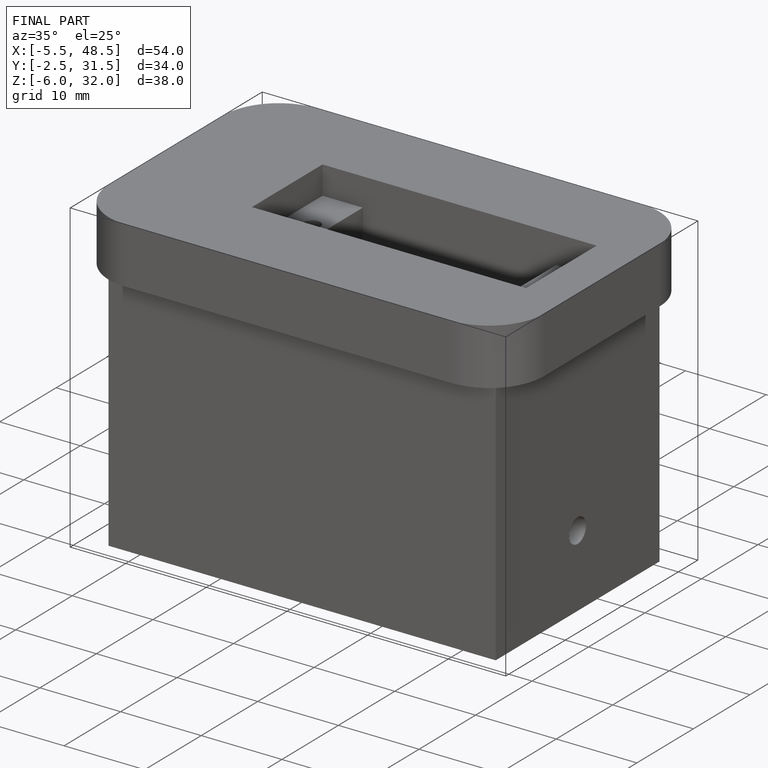
[diagram: finished part — iso view with bounding-box wireframe]
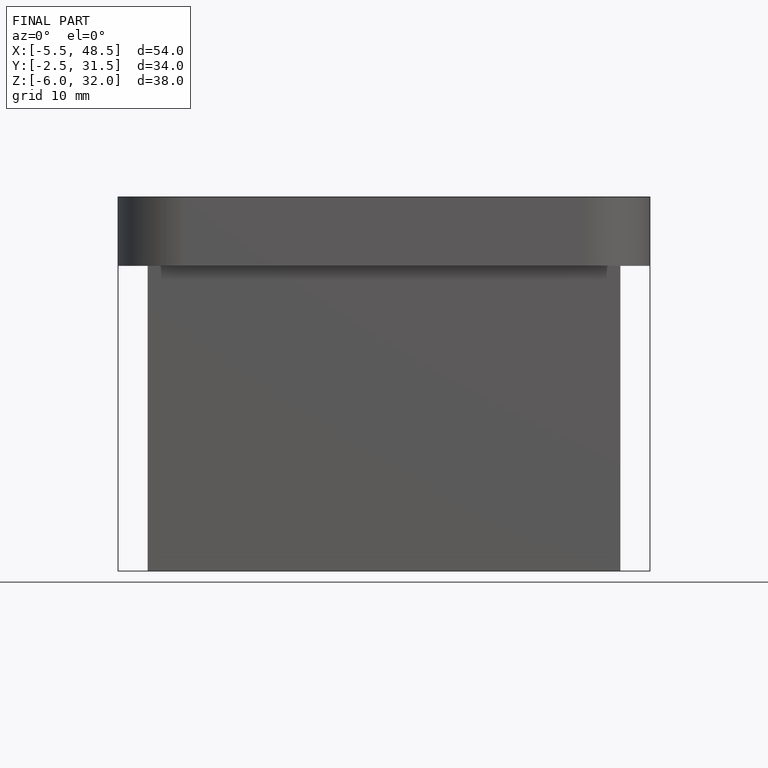
[diagram: finished part — front view with bounding-box wireframe]
